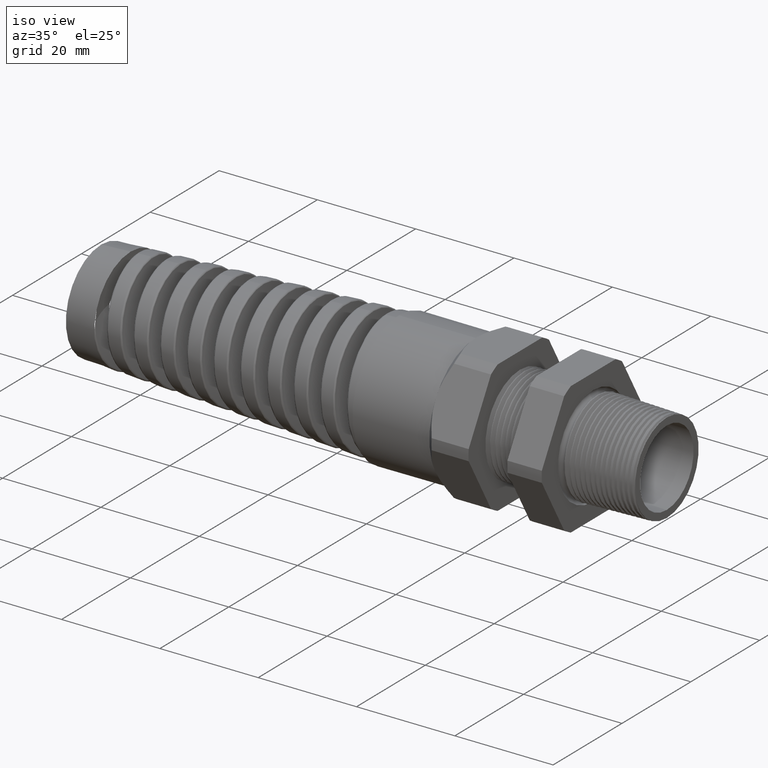
[diagram: clean part render]
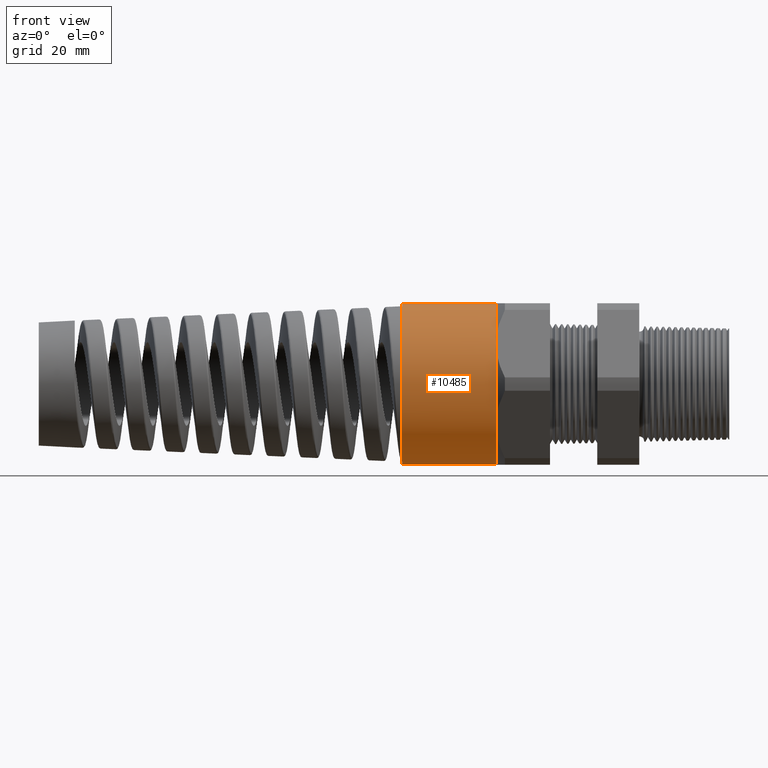
[diagram: tour spotlight — one face highlighted and labeled with its STEP entity id]
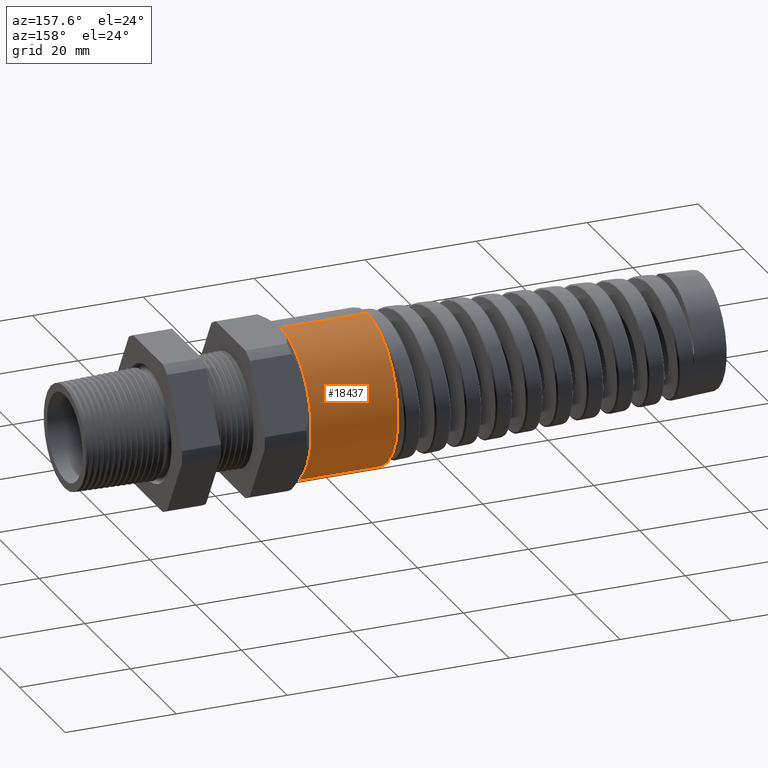
[diagram: tour spotlight — one face highlighted and labeled with its STEP entity id]
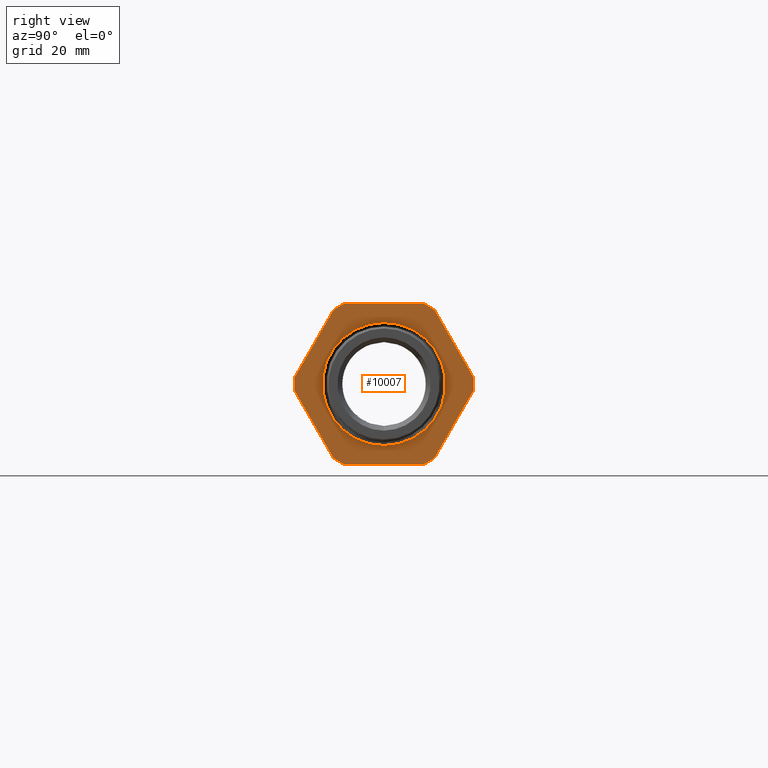
[diagram: tour spotlight — one face highlighted and labeled with its STEP entity id]
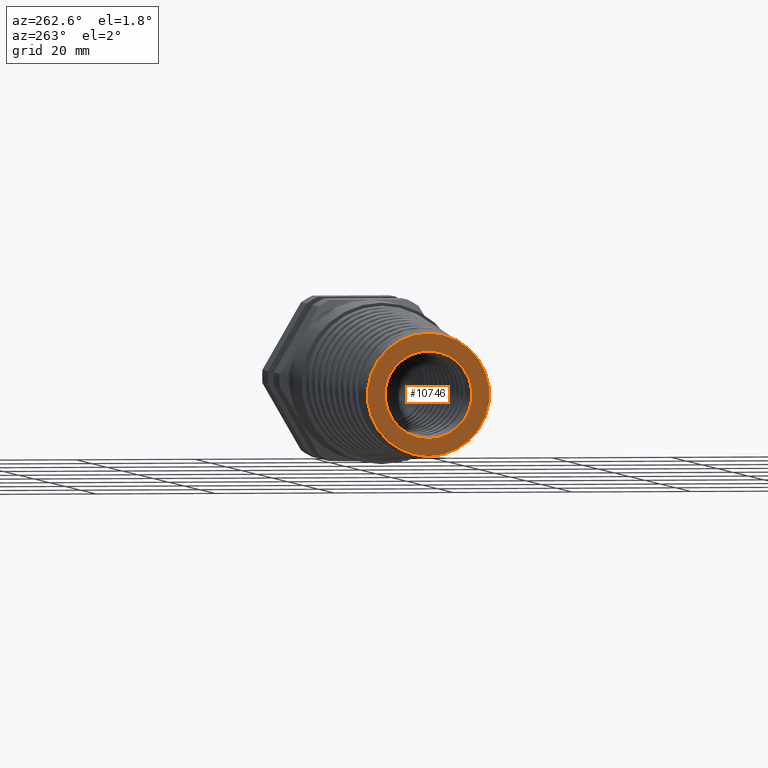
[diagram: tour spotlight — one face highlighted and labeled with its STEP entity id]
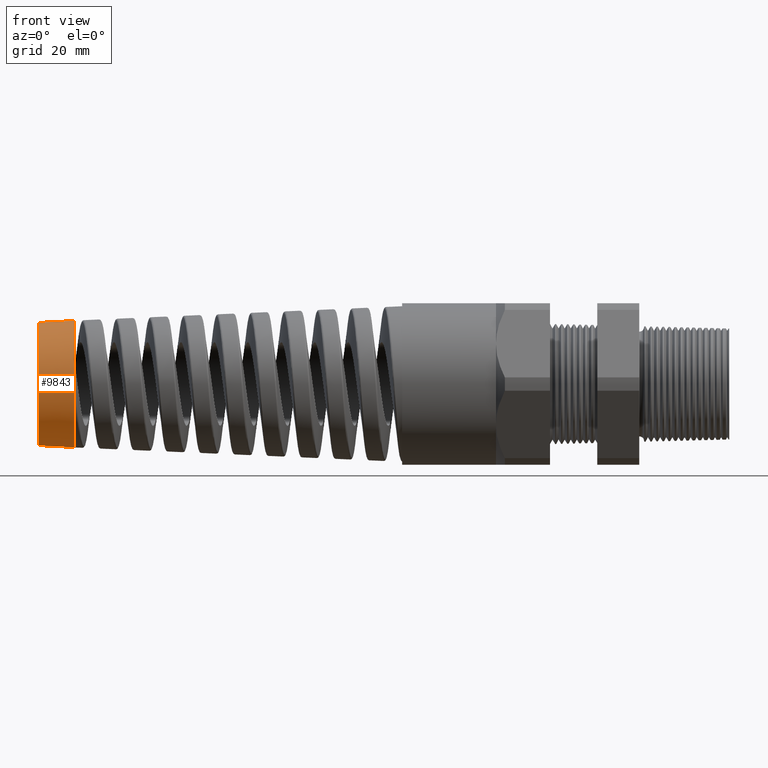
[diagram: tour spotlight — one face highlighted and labeled with its STEP entity id]
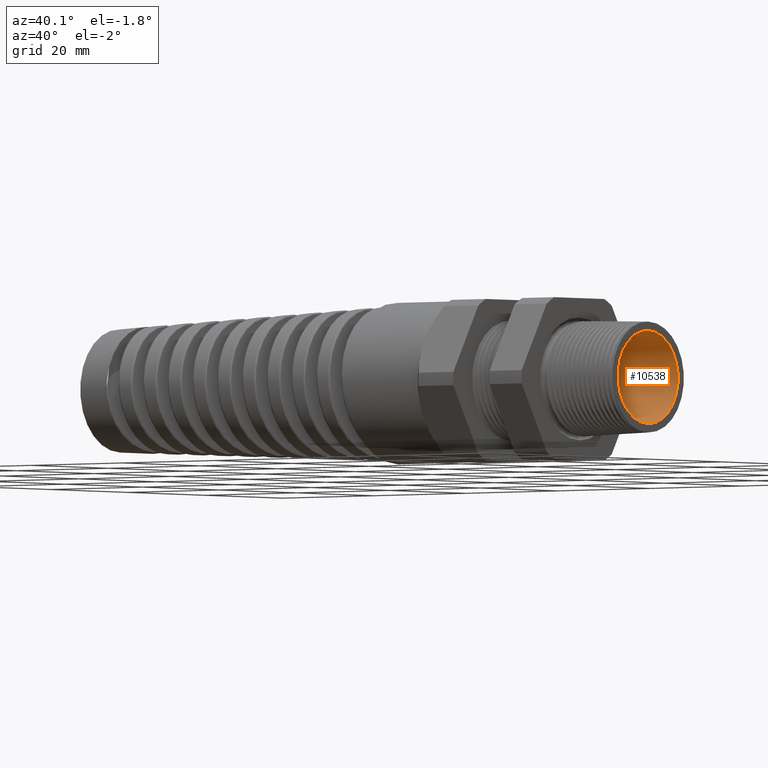
[diagram: tour spotlight — one face highlighted and labeled with its STEP entity id]
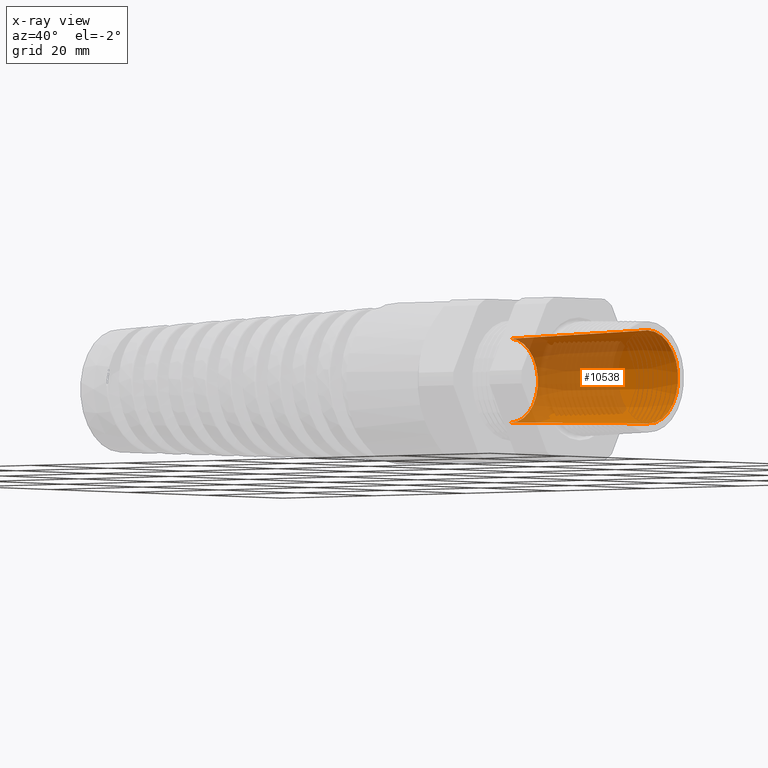
[diagram: x-ray of the same camera — body ghosted, this tour face saturated]
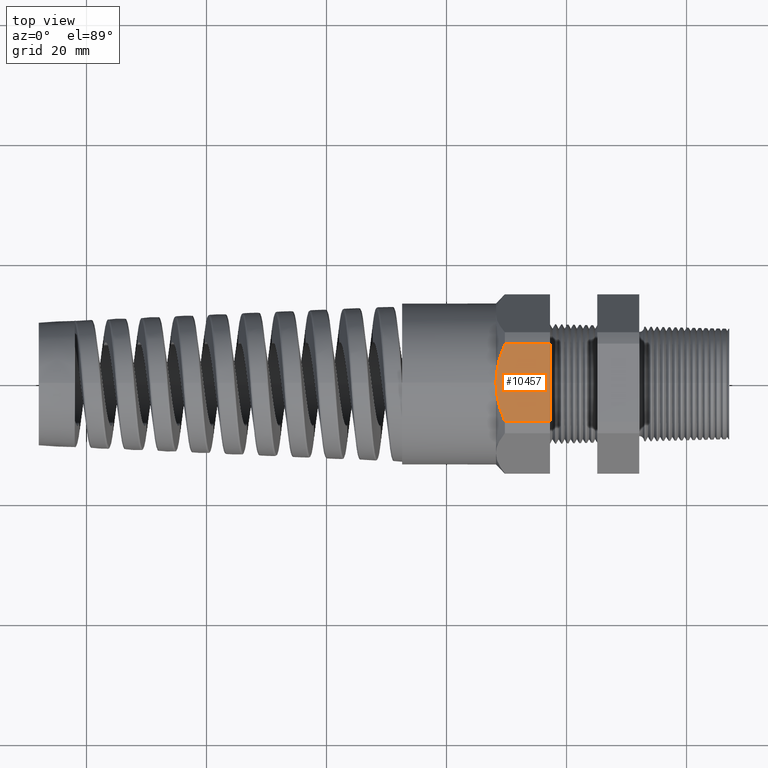
[diagram: tour spotlight — one face highlighted and labeled with its STEP entity id]
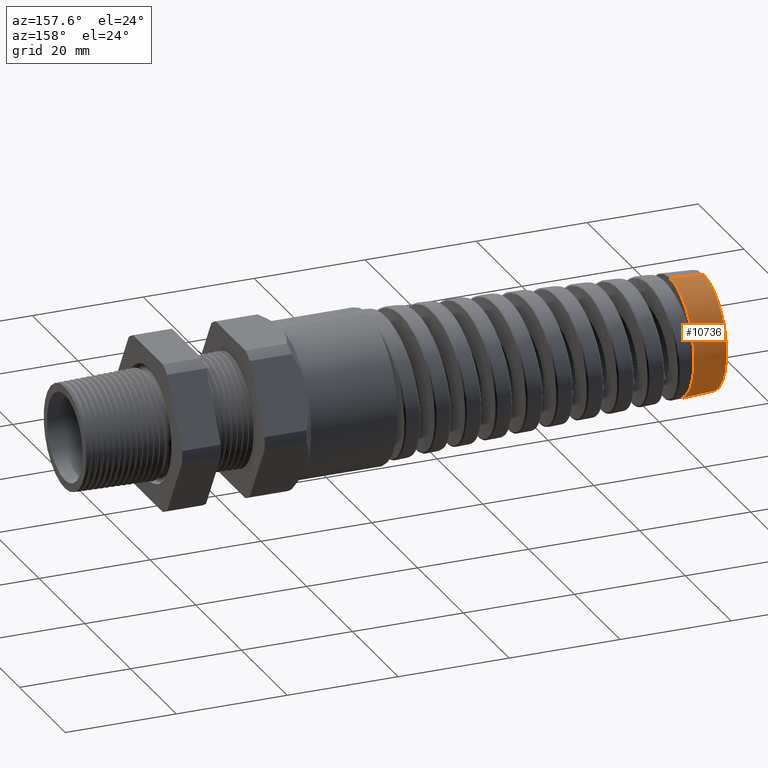
[diagram: tour spotlight — one face highlighted and labeled with its STEP entity id]
A machine part: a face-by-face anatomy tour. The part has 254 B-rep faces; the first image is the clean iso view, then the 8 largest visible faces are spotlighted one at a time (largest first), each with its STEP entity span.

Face 1 — front view, entity #10485. In plain terms, the highlighted cylindrical surface (partial cylindrical patch) has radius 13.462 mm, axis along (1, 0, 0).
Definition (entity closure, byte-faithful):
#9461 = CARTESIAN_POINT ( 'NONE',  ( -1.866159749937225300, 0.0000000000000000000, -0.5299999999999999200 ) ) ;
#9462 = CARTESIAN_POINT ( 'NONE',  ( -1.866159749937225300, 6.490628035480971200E-017, 0.5299999999999999200 ) ) ;
#9468 = DIRECTION ( 'NONE',  ( 1.000000000000000000, 0.0000000000000000000, 0.0000000000000000000 ) ) ;
#9469 = VECTOR ( 'NONE', #9468, 39.37007874015748100 ) ;
#9470 = CARTESIAN_POINT ( 'NONE',  ( 1.326736918405036800, 6.490628035480971200E-017, 0.5299999999999999200 ) ) ;
#9471 = LINE ( 'NONE', #9470, #9469 ) ;
#9476 = CARTESIAN_POINT ( 'NONE',  ( -1.250551181102362200, 0.0000000000000000000, 0.5299999999999999200 ) ) ;
#9494 = CARTESIAN_POINT ( 'NONE',  ( -1.250551181102362200, 0.0000000000000000000, -0.5300000000000001400 ) ) ;
#9505 = DIRECTION ( 'NONE',  ( 1.000000000000000000, 0.0000000000000000000, 0.0000000000000000000 ) ) ;
#9506 = VECTOR ( 'NONE', #9505, 39.37007874015748100 ) ;
#9507 = CARTESIAN_POINT ( 'NONE',  ( 1.326736918405036800, 0.0000000000000000000, -0.5299999999999999200 ) ) ;
#9508 = LINE ( 'NONE', #9507, #9506 ) ;
#10413 = VERTEX_POINT ( 'NONE', #14582 ) ;
#10419 = VERTEX_POINT ( 'NONE', #14575 ) ;
#10485 = ADVANCED_FACE ( 'NONE', ( #14726 ), #14782, .T. ) ;
#10486 = EDGE_LOOP ( 'NONE', ( #10487, #10488, #10490, #10491, #10545, #10547 ) ) ;
#10487 = ORIENTED_EDGE ( 'NONE', *, *, #18432, .F. ) ;
#10488 = ORIENTED_EDGE ( 'NONE', *, *, #10489, .F. ) ;
#10489 = EDGE_CURVE ( 'NONE', #18436, #18435, #14778, .T. ) ;
#10490 = ORIENTED_EDGE ( 'NONE', *, *, #18448, .T. ) ;
#10491 = ORIENTED_EDGE ( 'NONE', *, *, #10492, .F. ) ;
#10492 = EDGE_CURVE ( 'NONE', #10419, #18451, #14774, .T. ) ;
#10545 = ORIENTED_EDGE ( 'NONE', *, *, #10546, .F. ) ;
#10546 = EDGE_CURVE ( 'NONE', #10413, #10419, #14865, .T. ) ;
#10547 = ORIENTED_EDGE ( 'NONE', *, *, #10548, .F. ) ;
#10548 = EDGE_CURVE ( 'NONE', #18428, #10413, #14856, .T. ) ;
#14575 = CARTESIAN_POINT ( 'NONE',  ( -1.250551181102362200, -0.4589934640057526900, -0.2650000000000002400 ) ) ;
#14582 = CARTESIAN_POINT ( 'NONE',  ( -1.250551181102362200, -0.4589934640057527500, 0.2649999999999999600 ) ) ;
#14726 = FACE_OUTER_BOUND ( 'NONE', #10486, .T. ) ;
#14770 = DIRECTION ( 'NONE',  ( 0.0000000000000000000, 0.0000000000000000000, -1.000000000000000000 ) ) ;
#14771 = DIRECTION ( 'NONE',  ( 1.000000000000000000, 0.0000000000000000000, 0.0000000000000000000 ) ) ;
#14772 = CARTESIAN_POINT ( 'NONE',  ( -1.250551181102362200, 0.0000000000000000000, 0.0000000000000000000 ) ) ;
#14773 = AXIS2_PLACEMENT_3D ( 'NONE', #14772, #14771, #14770 ) ;
#14774 = CIRCLE ( 'NONE', #14773, 0.5299999999999999200 ) ;
#14775 = DIRECTION ( 'NONE',  ( 0.0000000000000000000, 0.0000000000000000000, 1.000000000000000000 ) ) ;
#14776 = DIRECTION ( 'NONE',  ( -1.000000000000000000, 0.0000000000000000000, 0.0000000000000000000 ) ) ;
#14777 = AXIS2_PLACEMENT_3D ( 'NONE', #14783, #14776, #14775 ) ;
#14778 = CIRCLE ( 'NONE', #14777, 0.5299999999999999200 ) ;
#14779 = DIRECTION ( 'NONE',  ( 0.0000000000000000000, 0.0000000000000000000, -1.000000000000000000 ) ) ;
#14780 = DIRECTION ( 'NONE',  ( 1.000000000000000000, 0.0000000000000000000, 0.0000000000000000000 ) ) ;
#14781 = AXIS2_PLACEMENT_3D ( 'NONE', #14784, #14780, #14779 ) ;
#14782 = CYLINDRICAL_SURFACE ( 'NONE', #14781, 0.5299999999999999200 ) ;
#14783 = CARTESIAN_POINT ( 'NONE',  ( -1.866159749937225300, 0.0000000000000000000, 0.0000000000000000000 ) ) ;
#14784 = CARTESIAN_POINT ( 'NONE',  ( 1.326736918405036800, 0.0000000000000000000, 0.0000000000000000000 ) ) ;
#14852 = DIRECTION ( 'NONE',  ( 0.0000000000000000000, 0.0000000000000000000, -1.000000000000000000 ) ) ;
#14853 = DIRECTION ( 'NONE',  ( 1.000000000000000000, 0.0000000000000000000, 0.0000000000000000000 ) ) ;
#14854 = CARTESIAN_POINT ( 'NONE',  ( -1.250551181102362200, 0.0000000000000000000, 0.0000000000000000000 ) ) ;
#14855 = AXIS2_PLACEMENT_3D ( 'NONE', #14854, #14853, #14852 ) ;
#14856 = CIRCLE ( 'NONE', #14855, 0.5299999999999999200 ) ;
#14857 = DIRECTION ( 'NONE',  ( 0.0000000000000000000, 0.0000000000000000000, -1.000000000000000000 ) ) ;
#14858 = DIRECTION ( 'NONE',  ( 1.000000000000000000, 0.0000000000000000000, 0.0000000000000000000 ) ) ;
#14859 = CARTESIAN_POINT ( 'NONE',  ( -1.250551181102362200, 0.0000000000000000000, 0.0000000000000000000 ) ) ;
#14860 = AXIS2_PLACEMENT_3D ( 'NONE', #14859, #14858, #14857 ) ;
#14865 = CIRCLE ( 'NONE', #14860, 0.5299999999999999200 ) ;
#18428 = VERTEX_POINT ( 'NONE', #9476 ) ;
#18432 = EDGE_CURVE ( 'NONE', #18435, #18428, #9471, .T. ) ;
#18435 = VERTEX_POINT ( 'NONE', #9462 ) ;
#18436 = VERTEX_POINT ( 'NONE', #9461 ) ;
#18448 = EDGE_CURVE ( 'NONE', #18436, #18451, #9508, .T. ) ;
#18451 = VERTEX_POINT ( 'NONE', #9494 ) ;

Face 2 — auxiliary view, entity #18437. In plain terms, the highlighted cylindrical surface (partial cylindrical patch) has radius 13.462 mm, axis along (1, 0, 0).
Definition (entity closure, byte-faithful):
#9455 = DIRECTION ( 'NONE',  ( 0.0000000000000000000, 0.0000000000000000000, -1.000000000000000000 ) ) ;
#9456 = DIRECTION ( 'NONE',  ( 1.000000000000000000, 0.0000000000000000000, 0.0000000000000000000 ) ) ;
#9457 = AXIS2_PLACEMENT_3D ( 'NONE', #9459, #9456, #9455 ) ;
#9458 = CYLINDRICAL_SURFACE ( 'NONE', #9457, 0.5299999999999999200 ) ;
#9459 = CARTESIAN_POINT ( 'NONE',  ( 1.326736918405036800, 0.0000000000000000000, 0.0000000000000000000 ) ) ;
#9460 = FACE_OUTER_BOUND ( 'NONE', #18438, .T. ) ;
#9461 = CARTESIAN_POINT ( 'NONE',  ( -1.866159749937225300, 0.0000000000000000000, -0.5299999999999999200 ) ) ;
#9462 = CARTESIAN_POINT ( 'NONE',  ( -1.866159749937225300, 6.490628035480971200E-017, 0.5299999999999999200 ) ) ;
#9463 = DIRECTION ( 'NONE',  ( 0.0000000000000000000, 0.0000000000000000000, 1.000000000000000000 ) ) ;
#9464 = DIRECTION ( 'NONE',  ( -1.000000000000000000, 0.0000000000000000000, 0.0000000000000000000 ) ) ;
#9465 = CARTESIAN_POINT ( 'NONE',  ( -1.866159749937225300, 0.0000000000000000000, 0.0000000000000000000 ) ) ;
#9466 = AXIS2_PLACEMENT_3D ( 'NONE', #9465, #9464, #9463 ) ;
#9467 = CIRCLE ( 'NONE', #9466, 0.5299999999999999200 ) ;
#9468 = DIRECTION ( 'NONE',  ( 1.000000000000000000, 0.0000000000000000000, 0.0000000000000000000 ) ) ;
#9469 = VECTOR ( 'NONE', #9468, 39.37007874015748100 ) ;
#9470 = CARTESIAN_POINT ( 'NONE',  ( 1.326736918405036800, 6.490628035480971200E-017, 0.5299999999999999200 ) ) ;
#9471 = LINE ( 'NONE', #9470, #9469 ) ;
#9476 = CARTESIAN_POINT ( 'NONE',  ( -1.250551181102362200, 0.0000000000000000000, 0.5299999999999999200 ) ) ;
#9477 = DIRECTION ( 'NONE',  ( 0.0000000000000000000, 0.0000000000000000000, -1.000000000000000000 ) ) ;
#9478 = DIRECTION ( 'NONE',  ( 1.000000000000000000, 0.0000000000000000000, 0.0000000000000000000 ) ) ;
#9479 = CARTESIAN_POINT ( 'NONE',  ( -1.250551181102362200, 0.0000000000000000000, 0.0000000000000000000 ) ) ;
#9480 = AXIS2_PLACEMENT_3D ( 'NONE', #9479, #9478, #9477 ) ;
#9481 = CIRCLE ( 'NONE', #9480, 0.5299999999999999200 ) ;
#9489 = CARTESIAN_POINT ( 'NONE',  ( -1.250551181102362200, 0.0000000000000000000, 0.0000000000000000000 ) ) ;
#9490 = AXIS2_PLACEMENT_3D ( 'NONE', #9489, #9551, #9550 ) ;
#9491 = CIRCLE ( 'NONE', #9490, 0.5299999999999999200 ) ;
#9492 = CARTESIAN_POINT ( 'NONE',  ( -1.250551181102362200, 0.4589934640057525300, 0.2650000000000001200 ) ) ;
#9493 = CARTESIAN_POINT ( 'NONE',  ( -1.250551181102362200, 0.4589934640057525300, -0.2650000000000001800 ) ) ;
#9494 = CARTESIAN_POINT ( 'NONE',  ( -1.250551181102362200, 0.0000000000000000000, -0.5300000000000001400 ) ) ;
#9505 = DIRECTION ( 'NONE',  ( 1.000000000000000000, 0.0000000000000000000, 0.0000000000000000000 ) ) ;
#9506 = VECTOR ( 'NONE', #9505, 39.37007874015748100 ) ;
#9507 = CARTESIAN_POINT ( 'NONE',  ( 1.326736918405036800, 0.0000000000000000000, -0.5299999999999999200 ) ) ;
#9508 = LINE ( 'NONE', #9507, #9506 ) ;
#9545 = DIRECTION ( 'NONE',  ( 0.0000000000000000000, 0.0000000000000000000, -1.000000000000000000 ) ) ;
#9546 = DIRECTION ( 'NONE',  ( 1.000000000000000000, 0.0000000000000000000, 0.0000000000000000000 ) ) ;
#9547 = CARTESIAN_POINT ( 'NONE',  ( -1.250551181102362200, 0.0000000000000000000, 0.0000000000000000000 ) ) ;
#9548 = AXIS2_PLACEMENT_3D ( 'NONE', #9547, #9546, #9545 ) ;
#9549 = CIRCLE ( 'NONE', #9548, 0.5299999999999999200 ) ;
#9550 = DIRECTION ( 'NONE',  ( 0.0000000000000000000, 0.0000000000000000000, -1.000000000000000000 ) ) ;
#9551 = DIRECTION ( 'NONE',  ( 1.000000000000000000, 0.0000000000000000000, 0.0000000000000000000 ) ) ;
#18427 = EDGE_CURVE ( 'NONE', #18457, #18428, #9481, .T. ) ;
#18428 = VERTEX_POINT ( 'NONE', #9476 ) ;
#18429 = ORIENTED_EDGE ( 'NONE', *, *, #18427, .F. ) ;
#18431 = ORIENTED_EDGE ( 'NONE', *, *, #18434, .F. ) ;
#18432 = EDGE_CURVE ( 'NONE', #18435, #18428, #9471, .T. ) ;
#18433 = ORIENTED_EDGE ( 'NONE', *, *, #18432, .T. ) ;
#18434 = EDGE_CURVE ( 'NONE', #18435, #18436, #9467, .T. ) ;
#18435 = VERTEX_POINT ( 'NONE', #9462 ) ;
#18436 = VERTEX_POINT ( 'NONE', #9461 ) ;
#18437 = ADVANCED_FACE ( 'NONE', ( #9460 ), #9458, .T. ) ;
#18438 = EDGE_LOOP ( 'NONE', ( #18431, #18433, #18429, #18458, #18455, #18439 ) ) ;
#18439 = ORIENTED_EDGE ( 'NONE', *, *, #18448, .F. ) ;
#18448 = EDGE_CURVE ( 'NONE', #18436, #18451, #9508, .T. ) ;
#18451 = VERTEX_POINT ( 'NONE', #9494 ) ;
#18454 = VERTEX_POINT ( 'NONE', #9493 ) ;
#18455 = ORIENTED_EDGE ( 'NONE', *, *, #18460, .F. ) ;
#18457 = VERTEX_POINT ( 'NONE', #9492 ) ;
#18458 = ORIENTED_EDGE ( 'NONE', *, *, #18459, .F. ) ;
#18459 = EDGE_CURVE ( 'NONE', #18454, #18457, #9491, .T. ) ;
#18460 = EDGE_CURVE ( 'NONE', #18451, #18454, #9549, .T. ) ;

Face 3 — right view, entity #10007. In plain terms, the highlighted planar face has unit normal (1, 0, 0).
Definition (entity closure, byte-faithful):
#8766 = CARTESIAN_POINT ( 'NONE',  ( -0.3100000000000000000, 0.0000000000000000000, -0.4036326053875440300 ) ) ;
#8911 = DIRECTION ( 'NONE',  ( 0.0000000000000000000, 0.0000000000000000000, -1.000000000000000000 ) ) ;
#8912 = DIRECTION ( 'NONE',  ( -1.000000000000000000, 0.0000000000000000000, 0.0000000000000000000 ) ) ;
#8913 = CARTESIAN_POINT ( 'NONE',  ( -0.3100000000000000000, 0.0000000000000000000, 0.0000000000000000000 ) ) ;
#8914 = AXIS2_PLACEMENT_3D ( 'NONE', #8913, #8912, #8911 ) ;
#8919 = CIRCLE ( 'NONE', #8914, 0.4036326053875440300 ) ;
#8980 = CARTESIAN_POINT ( 'NONE',  ( -0.3100000000000000000, 4.943073782193624900E-017, 0.4036326053875440300 ) ) ;
#10007 = ADVANCED_FACE ( 'NONE', ( #13774, #13773 ), #13772, .T. ) ;
#10008 = EDGE_LOOP ( 'NONE', ( #10009, #10068, #10070, #10073, #10076, #10079, #12159, #10055, #10058, #10061, #10064, #10067 ) ) ;
#10009 = ORIENTED_EDGE ( 'NONE', *, *, #10010, .T. ) ;
#10010 = EDGE_CURVE ( 'NONE', #10011, #10012, #13767, .T. ) ;
#10011 = VERTEX_POINT ( 'NONE', #13827 ) ;
#10012 = VERTEX_POINT ( 'NONE', #13826 ) ;
#10013 = VERTEX_POINT ( 'NONE', #13825 ) ;
#10040 = EDGE_CURVE ( 'NONE', #10066, #10011, #13839, .T. ) ;
#10041 = EDGE_LOOP ( 'NONE', ( #10042, #10043 ) ) ;
#10042 = ORIENTED_EDGE ( 'NONE', *, *, #11853, .T. ) ;
#10043 = ORIENTED_EDGE ( 'NONE', *, *, #10044, .T. ) ;
#10044 = EDGE_CURVE ( 'NONE', #11881, #11803, #13834, .T. ) ;
#10053 = EDGE_CURVE ( 'NONE', #10081, #10054, #13880, .T. ) ;
#10054 = VERTEX_POINT ( 'NONE', #13876 ) ;
#10055 = ORIENTED_EDGE ( 'NONE', *, *, #10056, .T. ) ;
#10056 = EDGE_CURVE ( 'NONE', #10054, #10057, #13875, .T. ) ;
#10057 = VERTEX_POINT ( 'NONE', #13870 ) ;
#10058 = ORIENTED_EDGE ( 'NONE', *, *, #10059, .T. ) ;
#10059 = EDGE_CURVE ( 'NONE', #10057, #10060, #13869, .T. ) ;
#10060 = VERTEX_POINT ( 'NONE', #13865 ) ;
#10061 = ORIENTED_EDGE ( 'NONE', *, *, #10062, .T. ) ;
#10062 = EDGE_CURVE ( 'NONE', #10060, #10063, #13864, .T. ) ;
#10063 = VERTEX_POINT ( 'NONE', #13921 ) ;
#10064 = ORIENTED_EDGE ( 'NONE', *, *, #10065, .T. ) ;
#10065 = EDGE_CURVE ( 'NONE', #10063, #10066, #13920, .T. ) ;
#10066 = VERTEX_POINT ( 'NONE', #13916 ) ;
#10067 = ORIENTED_EDGE ( 'NONE', *, *, #10040, .T. ) ;
#10068 = ORIENTED_EDGE ( 'NONE', *, *, #10069, .T. ) ;
#10069 = EDGE_CURVE ( 'NONE', #10012, #10013, #13915, .T. ) ;
#10070 = ORIENTED_EDGE ( 'NONE', *, *, #10071, .T. ) ;
#10071 = EDGE_CURVE ( 'NONE', #10013, #10072, #13910, .T. ) ;
#10072 = VERTEX_POINT ( 'NONE', #13906 ) ;
#10073 = ORIENTED_EDGE ( 'NONE', *, *, #10074, .T. ) ;
#10074 = EDGE_CURVE ( 'NONE', #10072, #10075, #13905, .T. ) ;
#10075 = VERTEX_POINT ( 'NONE', #13900 ) ;
#10076 = ORIENTED_EDGE ( 'NONE', *, *, #10077, .T. ) ;
#10077 = EDGE_CURVE ( 'NONE', #10075, #10078, #13899, .T. ) ;
#10078 = VERTEX_POINT ( 'NONE', #13895 ) ;
#10079 = ORIENTED_EDGE ( 'NONE', *, *, #10080, .T. ) ;
#10080 = EDGE_CURVE ( 'NONE', #10078, #10081, #13893, .T. ) ;
#10081 = VERTEX_POINT ( 'NONE', #13951 ) ;
#11803 = VERTEX_POINT ( 'NONE', #8766 ) ;
#11853 = EDGE_CURVE ( 'NONE', #11803, #11881, #8919, .T. ) ;
#11881 = VERTEX_POINT ( 'NONE', #8980 ) ;
#12159 = ORIENTED_EDGE ( 'NONE', *, *, #10053, .T. ) ;
#13345 = DIRECTION ( 'NONE',  ( 0.0000000000000000000, 0.0000000000000000000, -1.000000000000000000 ) ) ;
#13764 = DIRECTION ( 'NONE',  ( 0.0000000000000000000, 0.5000000000000002200, 0.8660254037844383700 ) ) ;
#13765 = VECTOR ( 'NONE', #13764, 39.37007874015748100 ) ;
#13766 = CARTESIAN_POINT ( 'NONE',  ( -0.3100000000000000000, 0.7239934640057528200, 0.1939934640057525700 ) ) ;
#13767 = LINE ( 'NONE', #13766, #13765 ) ;
#13768 = DIRECTION ( 'NONE',  ( 0.0000000000000000000, 0.0000000000000000000, -1.000000000000000000 ) ) ;
#13769 = DIRECTION ( 'NONE',  ( 1.000000000000000000, 0.0000000000000000000, 0.0000000000000000000 ) ) ;
#13770 = CARTESIAN_POINT ( 'NONE',  ( -0.3100000000000000000, 1.060000000000000300, 0.0000000000000000000 ) ) ;
#13771 = AXIS2_PLACEMENT_3D ( 'NONE', #13770, #13769, #13768 ) ;
#13772 = PLANE ( 'NONE',  #13771 ) ;
#13773 = FACE_BOUND ( 'NONE', #10041, .T. ) ;
#13774 = FACE_OUTER_BOUND ( 'NONE', #10008, .T. ) ;
#13825 = CARTESIAN_POINT ( 'NONE',  ( -0.3100000000000000000, 0.5866618723924791300, 0.04387183015273708700 ) ) ;
#13826 = CARTESIAN_POINT ( 'NONE',  ( -0.3100000000000000000, 0.5866618723924792400, -0.04387183015273699000 ) ) ;
#13827 = CARTESIAN_POINT ( 'NONE',  ( -0.3100000000000000000, 0.3313250556190258100, -0.4861281698472630400 ) ) ;
#13830 = DIRECTION ( 'NONE',  ( 0.0000000000000000000, 0.0000000000000000000, -1.000000000000000000 ) ) ;
#13831 = DIRECTION ( 'NONE',  ( -1.000000000000000000, 0.0000000000000000000, 0.0000000000000000000 ) ) ;
#13832 = CARTESIAN_POINT ( 'NONE',  ( -0.3100000000000000000, 0.0000000000000000000, 0.0000000000000000000 ) ) ;
#13833 = AXIS2_PLACEMENT_3D ( 'NONE', #13832, #13831, #13830 ) ;
#13834 = CIRCLE ( 'NONE', #13833, 0.4036326053875440300 ) ;
#13835 = DIRECTION ( 'NONE',  ( 0.0000000000000000000, 0.0000000000000000000, -1.000000000000000000 ) ) ;
#13836 = DIRECTION ( 'NONE',  ( 1.000000000000000000, 0.0000000000000000000, 0.0000000000000000000 ) ) ;
#13837 = CARTESIAN_POINT ( 'NONE',  ( -0.3100000000000000000, 0.0000000000000000000, 0.0000000000000000000 ) ) ;
#13838 = AXIS2_PLACEMENT_3D ( 'NONE', #13837, #13836, #13835 ) ;
#13839 = CIRCLE ( 'NONE', #13838, 0.5882999999999999300 ) ;
#13861 = DIRECTION ( 'NONE',  ( 1.000000000000000000, 0.0000000000000000000, 0.0000000000000000000 ) ) ;
#13862 = CARTESIAN_POINT ( 'NONE',  ( -0.3100000000000000000, 0.0000000000000000000, 0.0000000000000000000 ) ) ;
#13863 = AXIS2_PLACEMENT_3D ( 'NONE', #13862, #13861, #13922 ) ;
#13864 = CIRCLE ( 'NONE', #13863, 0.5883000000000000500 ) ;
#13865 = CARTESIAN_POINT ( 'NONE',  ( -0.3100000000000000000, -0.3313250556190258700, -0.4861281698472630400 ) ) ;
#13866 = DIRECTION ( 'NONE',  ( 0.0000000000000000000, 0.5000000000000001100, -0.8660254037844386000 ) ) ;
#13867 = VECTOR ( 'NONE', #13866, 39.37007874015748100 ) ;
#13868 = CARTESIAN_POINT ( 'NONE',  ( -0.3100000000000000000, -0.1939934640057524300, -0.7239934640057528200 ) ) ;
#13869 = LINE ( 'NONE', #13868, #13867 ) ;
#13870 = CARTESIAN_POINT ( 'NONE',  ( -0.3100000000000000000, -0.5866618723924791300, -0.04387183015273716400 ) ) ;
#13871 = DIRECTION ( 'NONE',  ( 0.0000000000000000000, 0.0000000000000000000, -1.000000000000000000 ) ) ;
#13872 = DIRECTION ( 'NONE',  ( 1.000000000000000000, 0.0000000000000000000, 0.0000000000000000000 ) ) ;
#13873 = CARTESIAN_POINT ( 'NONE',  ( -0.3100000000000000000, 0.0000000000000000000, 0.0000000000000000000 ) ) ;
#13874 = AXIS2_PLACEMENT_3D ( 'NONE', #13873, #13872, #13871 ) ;
#13875 = CIRCLE ( 'NONE', #13874, 0.5883000000000000500 ) ;
#13876 = CARTESIAN_POINT ( 'NONE',  ( -0.3100000000000000000, -0.5866618723924792400, 0.04387183015273651100 ) ) ;
#13877 = DIRECTION ( 'NONE',  ( 0.0000000000000000000, -0.4999999999999996100, -0.8660254037844388200 ) ) ;
#13878 = VECTOR ( 'NONE', #13877, 39.37007874015748900 ) ;
#13879 = CARTESIAN_POINT ( 'NONE',  ( -0.3100000000000000000, -0.1939934640057532600, 0.7239934640057523700 ) ) ;
#13880 = LINE ( 'NONE', #13879, #13878 ) ;
#13890 = DIRECTION ( 'NONE',  ( 1.000000000000000000, 0.0000000000000000000, 0.0000000000000000000 ) ) ;
#13891 = CARTESIAN_POINT ( 'NONE',  ( -0.3100000000000000000, 0.0000000000000000000, 0.0000000000000000000 ) ) ;
#13892 = AXIS2_PLACEMENT_3D ( 'NONE', #13891, #13890, #13345 ) ;
#13893 = CIRCLE ( 'NONE', #13892, 0.5882999999999999300 ) ;
#13895 = CARTESIAN_POINT ( 'NONE',  ( -0.3100000000000000000, -0.2553368167734533200, 0.5299999999999999200 ) ) ;
#13896 = DIRECTION ( 'NONE',  ( 0.0000000000000000000, -1.000000000000000000, 0.0000000000000000000 ) ) ;
#13897 = VECTOR ( 'NONE', #13896, 39.37007874015748100 ) ;
#13898 = CARTESIAN_POINT ( 'NONE',  ( -0.3100000000000000000, 1.060000000000000300, 0.5299999999999999200 ) ) ;
#13899 = LINE ( 'NONE', #13898, #13897 ) ;
#13900 = CARTESIAN_POINT ( 'NONE',  ( -0.3100000000000000000, 0.2553368167734533200, 0.5299999999999999200 ) ) ;
#13901 = DIRECTION ( 'NONE',  ( 0.0000000000000000000, 0.0000000000000000000, -1.000000000000000000 ) ) ;
#13902 = DIRECTION ( 'NONE',  ( 1.000000000000000000, 0.0000000000000000000, 0.0000000000000000000 ) ) ;
#13903 = CARTESIAN_POINT ( 'NONE',  ( -0.3100000000000000000, 0.0000000000000000000, 0.0000000000000000000 ) ) ;
#13904 = AXIS2_PLACEMENT_3D ( 'NONE', #13903, #13902, #13901 ) ;
#13905 = CIRCLE ( 'NONE', #13904, 0.5882999999999999300 ) ;
#13906 = CARTESIAN_POINT ( 'NONE',  ( -0.3100000000000000000, 0.3313250556190259800, 0.4861281698472629800 ) ) ;
#13907 = DIRECTION ( 'NONE',  ( 0.0000000000000000000, -0.5000000000000001100, 0.8660254037844386000 ) ) ;
#13908 = VECTOR ( 'NONE', #13907, 39.37007874015748100 ) ;
#13909 = CARTESIAN_POINT ( 'NONE',  ( -0.3100000000000000000, 0.7239934640057527100, -0.1939934640057525400 ) ) ;
#13910 = LINE ( 'NONE', #13909, #13908 ) ;
#13911 = DIRECTION ( 'NONE',  ( 0.0000000000000000000, 0.0000000000000000000, -1.000000000000000000 ) ) ;
#13912 = DIRECTION ( 'NONE',  ( 1.000000000000000000, 0.0000000000000000000, 0.0000000000000000000 ) ) ;
#13913 = CARTESIAN_POINT ( 'NONE',  ( -0.3100000000000000000, 0.0000000000000000000, 0.0000000000000000000 ) ) ;
#13914 = AXIS2_PLACEMENT_3D ( 'NONE', #13913, #13912, #13911 ) ;
#13915 = CIRCLE ( 'NONE', #13914, 0.5883000000000000500 ) ;
#13916 = CARTESIAN_POINT ( 'NONE',  ( -0.3100000000000000000, 0.2553368167734529900, -0.5300000000000001400 ) ) ;
#13917 = DIRECTION ( 'NONE',  ( 0.0000000000000000000, 1.000000000000000000, 0.0000000000000000000 ) ) ;
#13918 = VECTOR ( 'NONE', #13917, 39.37007874015748100 ) ;
#13919 = CARTESIAN_POINT ( 'NONE',  ( -0.3100000000000000000, 1.060000000000000300, -0.5300000000000001400 ) ) ;
#13920 = LINE ( 'NONE', #13919, #13918 ) ;
#13921 = CARTESIAN_POINT ( 'NONE',  ( -0.3100000000000000000, -0.2553368167734531000, -0.5300000000000001400 ) ) ;
#13922 = DIRECTION ( 'NONE',  ( 0.0000000000000000000, 0.0000000000000000000, -1.000000000000000000 ) ) ;
#13951 = CARTESIAN_POINT ( 'NONE',  ( -0.3100000000000000000, -0.3313250556190262000, 0.4861281698472627600 ) ) ;

Face 4 — auxiliary view, entity #10746. In plain terms, the highlighted planar face has unit normal (-1, 0, 0).
Definition (entity closure, byte-faithful):
#9846 = EDGE_CURVE ( 'NONE', #9847, #9848, #13194, .T. ) ;
#9847 = VERTEX_POINT ( 'NONE', #13190 ) ;
#9848 = VERTEX_POINT ( 'NONE', #13189 ) ;
#9889 = EDGE_CURVE ( 'NONE', #9916, #9890, #13560, .T. ) ;
#9890 = VERTEX_POINT ( 'NONE', #13555 ) ;
#9916 = VERTEX_POINT ( 'NONE', #13566 ) ;
#10746 = ADVANCED_FACE ( 'NONE', ( #15981, #15980 ), #15978, .T. ) ;
#10747 = EDGE_LOOP ( 'NONE', ( #10748, #10750 ) ) ;
#10748 = ORIENTED_EDGE ( 'NONE', *, *, #10749, .T. ) ;
#10749 = EDGE_CURVE ( 'NONE', #9848, #9847, #15965, .T. ) ;
#10750 = ORIENTED_EDGE ( 'NONE', *, *, #9846, .T. ) ;
#10751 = EDGE_LOOP ( 'NONE', ( #10752, #10754 ) ) ;
#10752 = ORIENTED_EDGE ( 'NONE', *, *, #10753, .F. ) ;
#10753 = EDGE_CURVE ( 'NONE', #9890, #9916, #15960, .T. ) ;
#10754 = ORIENTED_EDGE ( 'NONE', *, *, #9889, .F. ) ;
#13189 = CARTESIAN_POINT ( 'NONE',  ( -4.250000472440945000, 0.0000000000000000000, 0.4039367196918584600 ) ) ;
#13190 = CARTESIAN_POINT ( 'NONE',  ( -4.250000472440945000, -5.022602461613220300E-017, -0.4039367196918584600 ) ) ;
#13191 = DIRECTION ( 'NONE',  ( 0.0000000000000000000, 0.0000000000000000000, 1.000000000000000000 ) ) ;
#13192 = DIRECTION ( 'NONE',  ( -1.000000000000000000, 0.0000000000000000000, 0.0000000000000000000 ) ) ;
#13193 = AXIS2_PLACEMENT_3D ( 'NONE', #13199, #13192, #13191 ) ;
#13194 = CIRCLE ( 'NONE', #13193, 0.4039367196918584600 ) ;
#13199 = CARTESIAN_POINT ( 'NONE',  ( -4.250000472440945000, 0.0000000000000000000, 0.0000000000000000000 ) ) ;
#13555 = CARTESIAN_POINT ( 'NONE',  ( -4.250000472440945000, 0.0000000000000000000, 0.2873797903818214300 ) ) ;
#13556 = DIRECTION ( 'NONE',  ( 0.0000000000000000000, 0.0000000000000000000, 1.000000000000000000 ) ) ;
#13557 = DIRECTION ( 'NONE',  ( -1.000000000000000000, 0.0000000000000000000, 0.0000000000000000000 ) ) ;
#13558 = CARTESIAN_POINT ( 'NONE',  ( -4.250000472440945000, 0.0000000000000000000, 0.0000000000000000000 ) ) ;
#13559 = AXIS2_PLACEMENT_3D ( 'NONE', #13558, #13557, #13556 ) ;
#13560 = CIRCLE ( 'NONE', #13559, 0.2873797903818214300 ) ;
#13566 = CARTESIAN_POINT ( 'NONE',  ( -4.250000472440945000, 3.519387404307349000E-017, -0.2873797903818214300 ) ) ;
#15956 = DIRECTION ( 'NONE',  ( 0.0000000000000000000, 0.0000000000000000000, 1.000000000000000000 ) ) ;
#15957 = DIRECTION ( 'NONE',  ( -1.000000000000000000, 0.0000000000000000000, 0.0000000000000000000 ) ) ;
#15958 = CARTESIAN_POINT ( 'NONE',  ( -4.250000472440945000, 0.0000000000000000000, 0.0000000000000000000 ) ) ;
#15959 = AXIS2_PLACEMENT_3D ( 'NONE', #15958, #15957, #15956 ) ;
#15960 = CIRCLE ( 'NONE', #15959, 0.2873797903818214300 ) ;
#15961 = DIRECTION ( 'NONE',  ( 0.0000000000000000000, 0.0000000000000000000, 1.000000000000000000 ) ) ;
#15962 = DIRECTION ( 'NONE',  ( -1.000000000000000000, 0.0000000000000000000, 0.0000000000000000000 ) ) ;
#15963 = CARTESIAN_POINT ( 'NONE',  ( -4.250000472440945000, 0.0000000000000000000, 0.0000000000000000000 ) ) ;
#15964 = AXIS2_PLACEMENT_3D ( 'NONE', #15963, #15962, #15961 ) ;
#15965 = CIRCLE ( 'NONE', #15964, 0.4039367196918584600 ) ;
#15966 = DIRECTION ( 'NONE',  ( 0.0000000000000000000, 0.0000000000000000000, 1.000000000000000000 ) ) ;
#15967 = DIRECTION ( 'NONE',  ( -1.000000000000000000, 0.0000000000000000000, 0.0000000000000000000 ) ) ;
#15968 = CARTESIAN_POINT ( 'NONE',  ( -4.250000472440945000, 0.0000000000000000000, 0.0000000000000000000 ) ) ;
#15969 = AXIS2_PLACEMENT_3D ( 'NONE', #15968, #15967, #15966 ) ;
#15978 = PLANE ( 'NONE',  #15969 ) ;
#15980 = FACE_BOUND ( 'NONE', #10751, .T. ) ;
#15981 = FACE_OUTER_BOUND ( 'NONE', #10747, .T. ) ;

Face 5 — front view, entity #9843. In plain terms, the highlighted conical surface has half-angle 3 deg.
Definition (entity closure, byte-faithful):
#6406 = CARTESIAN_POINT ( 'NONE',  ( -4.013780000000000600, -0.4127907559572950300, -0.05406688779773393500 ) ) ;
#6407 = DIRECTION ( 'NONE',  ( 0.0000000000000000000, 0.0000000000000000000, -1.000000000000000000 ) ) ;
#6408 = DIRECTION ( 'NONE',  ( 1.000000000000000000, 0.0000000000000000000, 0.0000000000000000000 ) ) ;
#6409 = AXIS2_PLACEMENT_3D ( 'NONE', #6415, #6408, #6407 ) ;
#6410 = CIRCLE ( 'NONE', #6409, 0.4163165100736734800 ) ;
#6415 = CARTESIAN_POINT ( 'NONE',  ( -4.013780000000000600, 0.0000000000000000000, 0.0000000000000000000 ) ) ;
#7954 = CARTESIAN_POINT ( 'NONE',  ( -4.013780000000000600, -5.098406814939281100E-017, -0.4163165100736792000 ) ) ;
#9843 = ADVANCED_FACE ( 'NONE', ( #13201 ), #13200, .T. ) ;
#9844 = EDGE_LOOP ( 'NONE', ( #9845, #9849, #9903, #9904, #9907 ) ) ;
#9845 = ORIENTED_EDGE ( 'NONE', *, *, #9846, .F. ) ;
#9846 = EDGE_CURVE ( 'NONE', #9847, #9848, #13194, .T. ) ;
#9847 = VERTEX_POINT ( 'NONE', #13190 ) ;
#9848 = VERTEX_POINT ( 'NONE', #13189 ) ;
#9849 = ORIENTED_EDGE ( 'NONE', *, *, #9850, .T. ) ;
#9850 = EDGE_CURVE ( 'NONE', #9847, #11618, #13188, .T. ) ;
#9903 = ORIENTED_EDGE ( 'NONE', *, *, #11348, .F. ) ;
#9904 = ORIENTED_EDGE ( 'NONE', *, *, #9905, .T. ) ;
#9905 = EDGE_CURVE ( 'NONE', #11349, #9906, #13592, .T. ) ;
#9906 = VERTEX_POINT ( 'NONE', #13587 ) ;
#9907 = ORIENTED_EDGE ( 'NONE', *, *, #9908, .F. ) ;
#9908 = EDGE_CURVE ( 'NONE', #9848, #9906, #13586, .T. ) ;
#11348 = EDGE_CURVE ( 'NONE', #11349, #11618, #6410, .T. ) ;
#11349 = VERTEX_POINT ( 'NONE', #6406 ) ;
#11618 = VERTEX_POINT ( 'NONE', #7954 ) ;
#13185 = DIRECTION ( 'NONE',  ( 0.9986295347545738300, -6.409306129323724800E-018, -0.05233595624294395300 ) ) ;
#13186 = VECTOR ( 'NONE', #13185, 39.37007874015748900 ) ;
#13187 = CARTESIAN_POINT ( 'NONE',  ( -4.013780000000000600, -5.098406814939281100E-017, -0.4163165100736792000 ) ) ;
#13188 = LINE ( 'NONE', #13187, #13186 ) ;
#13189 = CARTESIAN_POINT ( 'NONE',  ( -4.250000472440945000, 0.0000000000000000000, 0.4039367196918584600 ) ) ;
#13190 = CARTESIAN_POINT ( 'NONE',  ( -4.250000472440945000, -5.022602461613220300E-017, -0.4039367196918584600 ) ) ;
#13191 = DIRECTION ( 'NONE',  ( 0.0000000000000000000, 0.0000000000000000000, 1.000000000000000000 ) ) ;
#13192 = DIRECTION ( 'NONE',  ( -1.000000000000000000, 0.0000000000000000000, 0.0000000000000000000 ) ) ;
#13193 = AXIS2_PLACEMENT_3D ( 'NONE', #13199, #13192, #13191 ) ;
#13194 = CIRCLE ( 'NONE', #13193, 0.4039367196918584600 ) ;
#13195 = DIRECTION ( 'NONE',  ( 0.0000000000000000000, 0.0000000000000000000, 1.000000000000000000 ) ) ;
#13196 = DIRECTION ( 'NONE',  ( 1.000000000000000000, 0.0000000000000000000, 0.0000000000000000000 ) ) ;
#13197 = CARTESIAN_POINT ( 'NONE',  ( -4.013780000000000600, 0.0000000000000000000, 0.0000000000000000000 ) ) ;
#13198 = AXIS2_PLACEMENT_3D ( 'NONE', #13197, #13196, #13195 ) ;
#13199 = CARTESIAN_POINT ( 'NONE',  ( -4.250000472440945000, 0.0000000000000000000, 0.0000000000000000000 ) ) ;
#13200 = CONICAL_SURFACE ( 'NONE', #13198, 0.4163165100736792000, 0.05235987755983000100 ) ;
#13201 = FACE_OUTER_BOUND ( 'NONE', #9844, .T. ) ;
#13583 = DIRECTION ( 'NONE',  ( 0.9986295347545738300, 0.0000000000000000000, 0.05233595624294395300 ) ) ;
#13584 = VECTOR ( 'NONE', #13583, 39.37007874015748900 ) ;
#13585 = CARTESIAN_POINT ( 'NONE',  ( -4.013780000000000600, 0.0000000000000000000, 0.4163165100736792000 ) ) ;
#13586 = LINE ( 'NONE', #13585, #13584 ) ;
#13587 = CARTESIAN_POINT ( 'NONE',  ( -4.013780000000000600, 0.0000000000000000000, 0.4163165100736792000 ) ) ;
#13588 = DIRECTION ( 'NONE',  ( 0.0000000000000000000, 0.0000000000000000000, 1.000000000000000000 ) ) ;
#13589 = DIRECTION ( 'NONE',  ( -1.000000000000000000, 0.0000000000000000000, 0.0000000000000000000 ) ) ;
#13590 = CARTESIAN_POINT ( 'NONE',  ( -4.013780000000000600, 0.0000000000000000000, 0.0000000000000000000 ) ) ;
#13591 = AXIS2_PLACEMENT_3D ( 'NONE', #13590, #13589, #13588 ) ;
#13592 = CIRCLE ( 'NONE', #13591, 0.4163165100736792000 ) ;

Face 6 — auxiliary view, entity #10538. An x-ray twin of the same camera follows (body ghosted, this face saturated) — the face is partly hidden behind the body. In plain terms, the highlighted conical surface has half-angle 1.5 deg.
Definition (entity closure, byte-faithful):
#9426 = DIRECTION ( 'NONE',  ( 0.9996573249755573700, 0.0000000000000000000, -0.02617694830786632100 ) ) ;
#9427 = VECTOR ( 'NONE', #9426, 39.37007874015748100 ) ;
#9428 = CARTESIAN_POINT ( 'NONE',  ( -0.8962204724409449400, 0.0000000000000000000, -0.2750000000000000800 ) ) ;
#9429 = LINE ( 'NONE', #9428, #9427 ) ;
#9472 = DIRECTION ( 'NONE',  ( 0.9996573249755573700, 3.205751595667422000E-018, 0.02617694830786632100 ) ) ;
#9473 = VECTOR ( 'NONE', #9472, 39.37007874015748100 ) ;
#9474 = CARTESIAN_POINT ( 'NONE',  ( -0.8962204724409449400, 3.367778697655221900E-017, 0.2750000000000000800 ) ) ;
#9475 = LINE ( 'NONE', #9474, #9473 ) ;
#9482 = CARTESIAN_POINT ( 'NONE',  ( 0.2800000000000000300, 3.744975019052301000E-017, 0.3058004170394025800 ) ) ;
#9483 = CARTESIAN_POINT ( 'NONE',  ( 0.2800000000000000300, 0.0000000000000000000, -0.3058004170394025800 ) ) ;
#9900 = VERTEX_POINT ( 'NONE', #13594 ) ;
#9901 = VERTEX_POINT ( 'NONE', #13593 ) ;
#10537 = EDGE_CURVE ( 'NONE', #9901, #9900, #14872, .T. ) ;
#10538 = ADVANCED_FACE ( 'NONE', ( #14867 ), #14866, .F. ) ;
#10539 = EDGE_LOOP ( 'NONE', ( #10540, #10541, #10542, #10543 ) ) ;
#10540 = ORIENTED_EDGE ( 'NONE', *, *, #18430, .F. ) ;
#10541 = ORIENTED_EDGE ( 'NONE', *, *, #10537, .F. ) ;
#10542 = ORIENTED_EDGE ( 'NONE', *, *, #18422, .T. ) ;
#10543 = ORIENTED_EDGE ( 'NONE', *, *, #10602, .T. ) ;
#10602 = EDGE_CURVE ( 'NONE', #18425, #18426, #14945, .T. ) ;
#13593 = CARTESIAN_POINT ( 'NONE',  ( -0.8962204724409449400, 0.0000000000000000000, -0.2750000000000000800 ) ) ;
#13594 = CARTESIAN_POINT ( 'NONE',  ( -0.8962204724409449400, 3.367778697655222500E-017, 0.2750000000000001300 ) ) ;
#14861 = DIRECTION ( 'NONE',  ( 0.0000000000000000000, 0.0000000000000000000, -1.000000000000000000 ) ) ;
#14862 = DIRECTION ( 'NONE',  ( 1.000000000000000000, 0.0000000000000000000, 0.0000000000000000000 ) ) ;
#14863 = CARTESIAN_POINT ( 'NONE',  ( -0.8962204724409449400, 0.0000000000000000000, 0.0000000000000000000 ) ) ;
#14864 = AXIS2_PLACEMENT_3D ( 'NONE', #14863, #14862, #14861 ) ;
#14866 = CONICAL_SURFACE ( 'NONE', #14864, 0.2750000000000000800, 0.02617993877990811000 ) ;
#14867 = FACE_OUTER_BOUND ( 'NONE', #10539, .T. ) ;
#14868 = DIRECTION ( 'NONE',  ( 0.0000000000000000000, 0.0000000000000000000, -1.000000000000000000 ) ) ;
#14869 = DIRECTION ( 'NONE',  ( 1.000000000000000000, 0.0000000000000000000, 0.0000000000000000000 ) ) ;
#14870 = CARTESIAN_POINT ( 'NONE',  ( -0.8962204724409449400, 0.0000000000000000000, 0.0000000000000000000 ) ) ;
#14871 = AXIS2_PLACEMENT_3D ( 'NONE', #14870, #14869, #14868 ) ;
#14872 = CIRCLE ( 'NONE', #14871, 0.2750000000000000800 ) ;
#14942 = DIRECTION ( 'NONE',  ( 1.000000000000000000, 0.0000000000000000000, 0.0000000000000000000 ) ) ;
#14943 = CARTESIAN_POINT ( 'NONE',  ( 0.2800000000000000300, 0.0000000000000000000, 0.0000000000000000000 ) ) ;
#14944 = AXIS2_PLACEMENT_3D ( 'NONE', #14943, #14942, #15005 ) ;
#14945 = CIRCLE ( 'NONE', #14944, 0.3058004170394025800 ) ;
#15005 = DIRECTION ( 'NONE',  ( 0.0000000000000000000, 0.0000000000000000000, -1.000000000000000000 ) ) ;
#18422 = EDGE_CURVE ( 'NONE', #9901, #18425, #9429, .T. ) ;
#18425 = VERTEX_POINT ( 'NONE', #9483 ) ;
#18426 = VERTEX_POINT ( 'NONE', #9482 ) ;
#18430 = EDGE_CURVE ( 'NONE', #9900, #18426, #9475, .T. ) ;

Face 7 — top view, entity #10457. In plain terms, the highlighted planar face has unit normal (0, 0, 1).
Definition (entity closure, byte-faithful):
#9476 = CARTESIAN_POINT ( 'NONE',  ( -1.250551181102362200, 0.0000000000000000000, 0.5299999999999999200 ) ) ;
#10457 = ADVANCED_FACE ( 'NONE', ( #14677 ), #14676, .T. ) ;
#10458 = EDGE_LOOP ( 'NONE', ( #10459, #10463, #10465, #10520, #10521 ) ) ;
#10459 = ORIENTED_EDGE ( 'NONE', *, *, #10460, .T. ) ;
#10460 = EDGE_CURVE ( 'NONE', #10461, #10462, #14671, .T. ) ;
#10461 = VERTEX_POINT ( 'NONE', #14667 ) ;
#10462 = VERTEX_POINT ( 'NONE', #14666 ) ;
#10463 = ORIENTED_EDGE ( 'NONE', *, *, #10464, .T. ) ;
#10464 = EDGE_CURVE ( 'NONE', #10462, #18428, #14665, .T. ) ;
#10465 = ORIENTED_EDGE ( 'NONE', *, *, #10466, .T. ) ;
#10466 = EDGE_CURVE ( 'NONE', #18428, #10479, #14712, .T. ) ;
#10477 = EDGE_CURVE ( 'NONE', #10478, #10479, #14741, .T. ) ;
#10478 = VERTEX_POINT ( 'NONE', #14733 ) ;
#10479 = VERTEX_POINT ( 'NONE', #14732 ) ;
#10520 = ORIENTED_EDGE ( 'NONE', *, *, #10477, .F. ) ;
#10521 = ORIENTED_EDGE ( 'NONE', *, *, #10522, .F. ) ;
#10522 = EDGE_CURVE ( 'NONE', #10461, #10478, #14842, .T. ) ;
#14665 = B_SPLINE_CURVE_WITH_KNOTS ( 'NONE', 3,
 ( #14720, #14719, #14718, #14717, #14716, #14715, #14714, #14713 ),
 .UNSPECIFIED., .F., .F.,
 ( 4, 2, 2, 4 ),
 ( 0.01004766229894865800, 0.01170587669684981300, 0.01336409109475096600, 0.01668051989055328200 ),
 .UNSPECIFIED. ) ;
#14666 = CARTESIAN_POINT ( 'NONE',  ( -1.192251181102362600, 0.2553368167734533200, 0.5299999999999999200 ) ) ;
#14667 = CARTESIAN_POINT ( 'NONE',  ( -0.8962204724409449400, 0.2553368167734533200, 0.5299999999999999200 ) ) ;
#14668 = DIRECTION ( 'NONE',  ( -1.000000000000000000, 0.0000000000000000000, 0.0000000000000000000 ) ) ;
#14669 = VECTOR ( 'NONE', #14668, 39.37007874015748100 ) ;
#14670 = CARTESIAN_POINT ( 'NONE',  ( 0.2800000000000000300, 0.2553368167734533200, 0.5299999999999999200 ) ) ;
#14671 = LINE ( 'NONE', #14670, #14669 ) ;
#14672 = DIRECTION ( 'NONE',  ( 1.000000000000000000, 0.0000000000000000000, 0.0000000000000000000 ) ) ;
#14673 = DIRECTION ( 'NONE',  ( 0.0000000000000000000, 0.0000000000000000000, 1.000000000000000000 ) ) ;
#14674 = CARTESIAN_POINT ( 'NONE',  ( 0.2800000000000000300, -0.2553368167734533200, 0.5299999999999999200 ) ) ;
#14675 = AXIS2_PLACEMENT_3D ( 'NONE', #14674, #14673, #14672 ) ;
#14676 = PLANE ( 'NONE',  #14675 ) ;
#14677 = FACE_OUTER_BOUND ( 'NONE', #10458, .T. ) ;
#14704 = CARTESIAN_POINT ( 'NONE',  ( -1.192251181102362400, -0.2553368167734533200, 0.5299999999999999200 ) ) ;
#14705 = CARTESIAN_POINT ( 'NONE',  ( -1.200987094738201300, -0.2352091357875818700, 0.5299999999999999200 ) ) ;
#14706 = CARTESIAN_POINT ( 'NONE',  ( -1.209086509643798600, -0.2146094092825773500, 0.5299999999999999200 ) ) ;
#14707 = CARTESIAN_POINT ( 'NONE',  ( -1.223435472514456300, -0.1728098393691076800, 0.5299999999999999200 ) ) ;
#14708 = CARTESIAN_POINT ( 'NONE',  ( -1.229647152833850000, -0.1517316267221620100, 0.5300000000000000300 ) ) ;
#14709 = CARTESIAN_POINT ( 'NONE',  ( -1.244909031250908100, -0.08787186943844430000, 0.5299999999999998000 ) ) ;
#14710 = CARTESIAN_POINT ( 'NONE',  ( -1.250551181102362000, -0.04445874038965409000, 0.5299999999999998000 ) ) ;
#14711 = CARTESIAN_POINT ( 'NONE',  ( -1.250551181102362200, 0.0000000000000000000, 0.5299999999999999200 ) ) ;
#14712 = B_SPLINE_CURVE_WITH_KNOTS ( 'NONE', 3,
 ( #14711, #14710, #14709, #14708, #14707, #14706, #14705, #14704 ),
 .UNSPECIFIED., .F., .F.,
 ( 4, 2, 2, 4 ),
 ( 0.01668051989055328200, 0.01999949653634989700, 0.02165898485924820600, 0.02331847318214651200 ),
 .UNSPECIFIED. ) ;
#14713 = CARTESIAN_POINT ( 'NONE',  ( -1.250551181102362200, 0.0000000000000000000, 0.5299999999999999200 ) ) ;
#14714 = CARTESIAN_POINT ( 'NONE',  ( -1.250551181102362200, 0.04442461113430315500, 0.5299999999999999200 ) ) ;
#14715 = CARTESIAN_POINT ( 'NONE',  ( -1.244904720576782500, 0.08790338043595170800, 0.5300000000000001400 ) ) ;
#14716 = CARTESIAN_POINT ( 'NONE',  ( -1.229633605227728100, 0.1517815661146136900, 0.5299999999999999200 ) ) ;
#14717 = CARTESIAN_POINT ( 'NONE',  ( -1.223418396050236900, 0.1728653463301444400, 0.5299999999999999200 ) ) ;
#14718 = CARTESIAN_POINT ( 'NONE',  ( -1.209061964280612200, 0.2146751329927178700, 0.5299999999999999200 ) ) ;
#14719 = CARTESIAN_POINT ( 'NONE',  ( -1.200976626604989300, 0.2352332545294328600, 0.5300000000000000300 ) ) ;
#14720 = CARTESIAN_POINT ( 'NONE',  ( -1.192251181102362600, 0.2553368167734533200, 0.5299999999999999200 ) ) ;
#14732 = CARTESIAN_POINT ( 'NONE',  ( -1.192251181102362400, -0.2553368167734533200, 0.5299999999999999200 ) ) ;
#14733 = CARTESIAN_POINT ( 'NONE',  ( -0.8962204724409449400, -0.2553368167734533200, 0.5299999999999999200 ) ) ;
#14734 = DIRECTION ( 'NONE',  ( -1.000000000000000000, 0.0000000000000000000, 0.0000000000000000000 ) ) ;
#14735 = VECTOR ( 'NONE', #14734, 39.37007874015748100 ) ;
#14736 = CARTESIAN_POINT ( 'NONE',  ( 0.2800000000000000300, -0.2553368167734533200, 0.5299999999999999200 ) ) ;
#14741 = LINE ( 'NONE', #14736, #14735 ) ;
#14823 = DIRECTION ( 'NONE',  ( 0.0000000000000000000, -1.000000000000000000, 0.0000000000000000000 ) ) ;
#14824 = VECTOR ( 'NONE', #14823, 39.37007874015748100 ) ;
#14831 = CARTESIAN_POINT ( 'NONE',  ( -0.8962204724409449400, 0.3950000000000000700, 0.5299999999999999200 ) ) ;
#14842 = LINE ( 'NONE', #14831, #14824 ) ;
#18428 = VERTEX_POINT ( 'NONE', #9476 ) ;

Face 8 — auxiliary view, entity #10736. In plain terms, the highlighted conical surface has half-angle 3 deg.
Definition (entity closure, byte-faithful):
#7888 = CARTESIAN_POINT ( 'NONE',  ( -4.013780000000000600, 0.4136634957377641800, -0.04692492785221781500 ) ) ;
#7954 = CARTESIAN_POINT ( 'NONE',  ( -4.013780000000000600, -5.098406814939281100E-017, -0.4163165100736792000 ) ) ;
#8217 = DIRECTION ( 'NONE',  ( 0.0000000000000000000, 0.0000000000000000000, -1.000000000000000000 ) ) ;
#8218 = DIRECTION ( 'NONE',  ( 1.000000000000000000, 0.0000000000000000000, 0.0000000000000000000 ) ) ;
#8219 = CARTESIAN_POINT ( 'NONE',  ( -4.013780000000000600, 0.0000000000000000000, 0.0000000000000000000 ) ) ;
#8220 = AXIS2_PLACEMENT_3D ( 'NONE', #8219, #8218, #8217 ) ;
#8221 = CIRCLE ( 'NONE', #8220, 0.4163165100736734800 ) ;
#9847 = VERTEX_POINT ( 'NONE', #13190 ) ;
#9848 = VERTEX_POINT ( 'NONE', #13189 ) ;
#9850 = EDGE_CURVE ( 'NONE', #9847, #11618, #13188, .T. ) ;
#9906 = VERTEX_POINT ( 'NONE', #13587 ) ;
#9908 = EDGE_CURVE ( 'NONE', #9848, #9906, #13586, .T. ) ;
#10736 = ADVANCED_FACE ( 'NONE', ( #15932 ), #15924, .T. ) ;
#10737 = EDGE_LOOP ( 'NONE', ( #10738, #10739, #10740, #10797, #10799 ) ) ;
#10738 = ORIENTED_EDGE ( 'NONE', *, *, #9850, .F. ) ;
#10739 = ORIENTED_EDGE ( 'NONE', *, *, #10749, .F. ) ;
#10740 = ORIENTED_EDGE ( 'NONE', *, *, #9908, .T. ) ;
#10749 = EDGE_CURVE ( 'NONE', #9848, #9847, #15965, .T. ) ;
#10797 = ORIENTED_EDGE ( 'NONE', *, *, #10798, .T. ) ;
#10798 = EDGE_CURVE ( 'NONE', #9906, #11610, #16024, .T. ) ;
#10799 = ORIENTED_EDGE ( 'NONE', *, *, #11659, .F. ) ;
#11610 = VERTEX_POINT ( 'NONE', #7888 ) ;
#11618 = VERTEX_POINT ( 'NONE', #7954 ) ;
#11659 = EDGE_CURVE ( 'NONE', #11618, #11610, #8221, .T. ) ;
#13185 = DIRECTION ( 'NONE',  ( 0.9986295347545738300, -6.409306129323724800E-018, -0.05233595624294395300 ) ) ;
#13186 = VECTOR ( 'NONE', #13185, 39.37007874015748900 ) ;
#13187 = CARTESIAN_POINT ( 'NONE',  ( -4.013780000000000600, -5.098406814939281100E-017, -0.4163165100736792000 ) ) ;
#13188 = LINE ( 'NONE', #13187, #13186 ) ;
#13189 = CARTESIAN_POINT ( 'NONE',  ( -4.250000472440945000, 0.0000000000000000000, 0.4039367196918584600 ) ) ;
#13190 = CARTESIAN_POINT ( 'NONE',  ( -4.250000472440945000, -5.022602461613220300E-017, -0.4039367196918584600 ) ) ;
#13583 = DIRECTION ( 'NONE',  ( 0.9986295347545738300, 0.0000000000000000000, 0.05233595624294395300 ) ) ;
#13584 = VECTOR ( 'NONE', #13583, 39.37007874015748900 ) ;
#13585 = CARTESIAN_POINT ( 'NONE',  ( -4.013780000000000600, 0.0000000000000000000, 0.4163165100736792000 ) ) ;
#13586 = LINE ( 'NONE', #13585, #13584 ) ;
#13587 = CARTESIAN_POINT ( 'NONE',  ( -4.013780000000000600, 0.0000000000000000000, 0.4163165100736792000 ) ) ;
#15921 = DIRECTION ( 'NONE',  ( 0.0000000000000000000, 0.0000000000000000000, 1.000000000000000000 ) ) ;
#15922 = DIRECTION ( 'NONE',  ( 1.000000000000000000, 0.0000000000000000000, 0.0000000000000000000 ) ) ;
#15923 = AXIS2_PLACEMENT_3D ( 'NONE', #15926, #15922, #15921 ) ;
#15924 = CONICAL_SURFACE ( 'NONE', #15923, 0.4163165100736792000, 0.05235987755983000100 ) ;
#15926 = CARTESIAN_POINT ( 'NONE',  ( -4.013780000000000600, 0.0000000000000000000, 0.0000000000000000000 ) ) ;
#15932 = FACE_OUTER_BOUND ( 'NONE', #10737, .T. ) ;
#15961 = DIRECTION ( 'NONE',  ( 0.0000000000000000000, 0.0000000000000000000, 1.000000000000000000 ) ) ;
#15962 = DIRECTION ( 'NONE',  ( -1.000000000000000000, 0.0000000000000000000, 0.0000000000000000000 ) ) ;
#15963 = CARTESIAN_POINT ( 'NONE',  ( -4.250000472440945000, 0.0000000000000000000, 0.0000000000000000000 ) ) ;
#15964 = AXIS2_PLACEMENT_3D ( 'NONE', #15963, #15962, #15961 ) ;
#15965 = CIRCLE ( 'NONE', #15964, 0.4039367196918584600 ) ;
#16021 = DIRECTION ( 'NONE',  ( 0.0000000000000000000, 0.0000000000000000000, 1.000000000000000000 ) ) ;
#16022 = DIRECTION ( 'NONE',  ( -1.000000000000000000, 0.0000000000000000000, 0.0000000000000000000 ) ) ;
#16023 = AXIS2_PLACEMENT_3D ( 'NONE', #16029, #16022, #16021 ) ;
#16024 = CIRCLE ( 'NONE', #16023, 0.4163165100736792000 ) ;
#16029 = CARTESIAN_POINT ( 'NONE',  ( -4.013780000000000600, 0.0000000000000000000, 0.0000000000000000000 ) ) ;